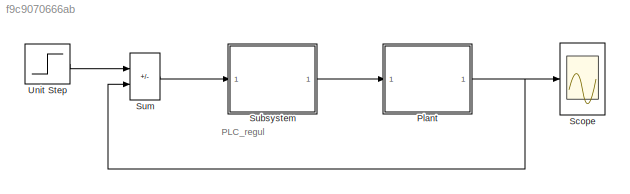
MODEL slx_f9c9070666ab
KIND model
CONFIG AbsTol = auto
CONFIG EnableMultiTasking = off
CONFIG FixedStep = 0.2
CONFIG MaxStep = auto
CONFIG MinStep = auto
CONFIG RelTol = 1e-3
CONFIG SampleTimeConstraint = Unconstrained
CONFIG SolverName = ode14x
CONFIG StartTime = 0.0
CONFIG StopTime = 10.0
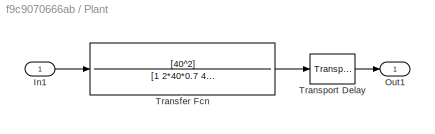
BLOCK [SubSystem] Plant
  Ports = [1, 1]
  RequestExecContextInheritance = off
BLOCK [Inport] Plant/In1
BLOCK [Outport] Plant/Out1
  VectorParamsAs1DForOutWhenUnconnected = off
BLOCK [TransferFcn] Plant/Transfer Fcn
  Denominator = [1 2*40*0.7 40^2]
  Numerator = [40^2]
BLOCK [TransportDelay] Plant/Transport Delay
  Ports = [1, 1]
BLOCK [Scope] Scope
  Floating = off
  NumInputPorts = 1
  Ports = [1]
  ScopeSpecificationString = Simulink.scopes.TimeScopeBlockCfg('CurrentConfiguration', extmgr.ConfigurationSet(extmgr.Configuration('Core','General UI',true,'FigureColor',[1 1 1]),extmgr.Configuration('Core','Source UI',true),extmgr.Configuration('Sources','WiredSimulink',true,'DataLoggingSaveFormat','StructureWithTime','DataLoggingLimitDataPoints',true,'DataLoggingDecimation','1','DataLoggingDecimateData',true),extmgr.Config...<+1778ch>
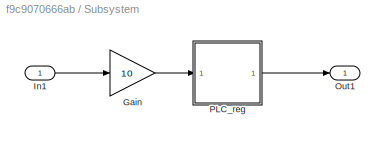
BLOCK [SubSystem] Subsystem
  Ports = [1, 1]
  RequestExecContextInheritance = off
  SystemSampleTime = 0.2
  TreatAsAtomicUnit = on
BLOCK [Gain] Subsystem/Gain
  Gain = 10
BLOCK [Inport] Subsystem/In1
BLOCK [Outport] Subsystem/Out1
  VectorParamsAs1DForOutWhenUnconnected = off
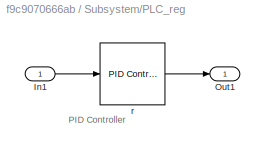
BLOCK [SubSystem] Subsystem/PLC_reg
  Ports = [1, 1]
  RequestExecContextInheritance = off
  TreatAsAtomicUnit = on
BLOCK [Inport] Subsystem/PLC_reg/In1
BLOCK [Outport] Subsystem/PLC_reg/Out1
  VectorParamsAs1DForOutWhenUnconnected = off
BLOCK [Reference] Subsystem/PLC_reg/r  REF=slpidlib/PID Controller
  Ports = [1, 1]
  SourceBlock = slpidlib/PID Controller
  SourceProductBaseCode = SL
  SourceType = PID 1dof
BLOCK [Sum] Sum
  IconShape = rectangular
  InputSameDT = on
  Inputs = +-
  OutDataTypeStr = Inherit: Same as first input
  Ports = [2, 1]
  SaturateOnIntegerOverflow = on
BLOCK [Step] Unit Step
  SampleTime = 0
  Time = 0
ANNOTATION (root): PLC_regul
ANNOTATION Subsystem/PLC_reg: PID Controller
LINE Plant/In1:1 -> Plant/Transfer Fcn:1
LINE Plant/Transfer Fcn:1 -> Plant/Transport Delay:1
LINE Plant/Transport Delay:1 -> Plant/Out1:1
NET Plant:1 -> Scope:1, Sum:2
LINE Subsystem/Gain:1 -> Subsystem/PLC_reg:1
LINE Subsystem/In1:1 -> Subsystem/Gain:1
LINE Subsystem/PLC_reg/In1:1 -> Subsystem/PLC_reg/r:1
LINE Subsystem/PLC_reg/r:1 -> Subsystem/PLC_reg/Out1:1
LINE Subsystem/PLC_reg:1 -> Subsystem/Out1:1
LINE Subsystem:1 -> Plant:1
LINE Sum:1 -> Subsystem:1
LINE Unit Step:1 -> Sum:1
note: NET lines group one-source signal fan-out (src -> all destinations, sorted); 1:1 wires keep LINE
